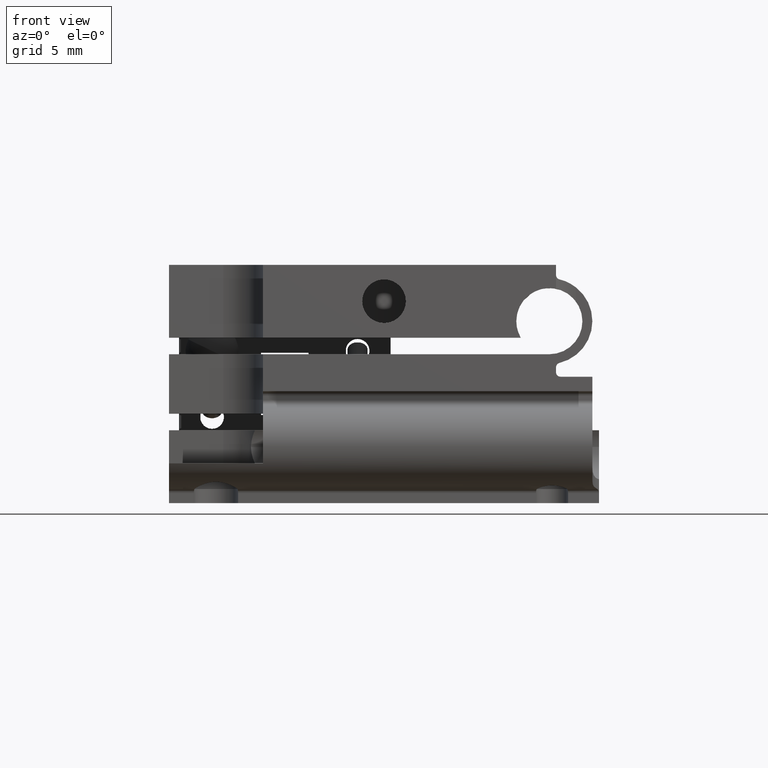
[diagram: clean part render]
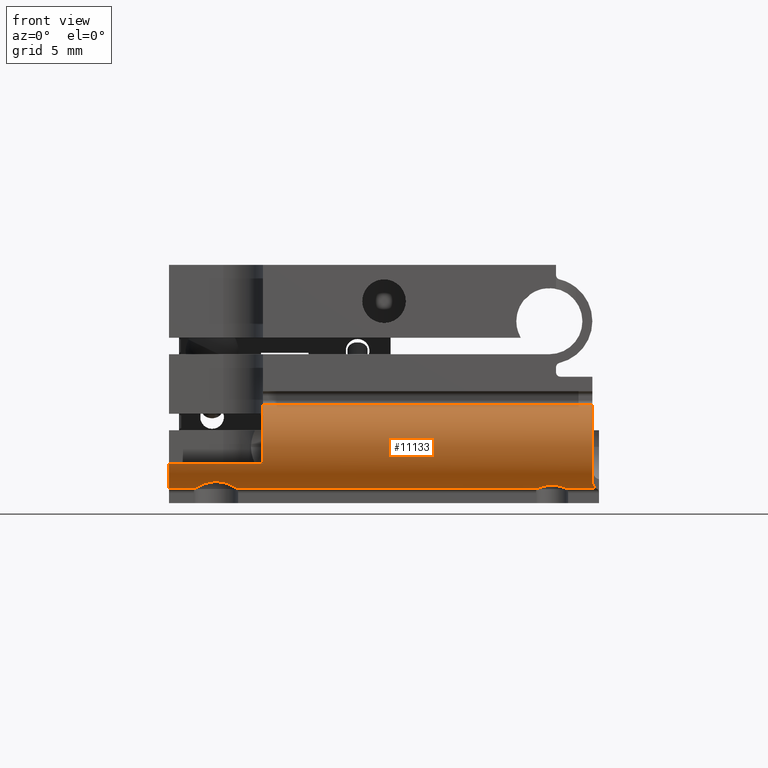
[diagram: same view with one face highlighted and labeled with its STEP entity id]
A machine part, front view. The second image highlights one B-rep face of the part: STEP entity #11133.
In plain terms, the highlighted cylindrical surface (partial cylindrical patch) has radius 3.25 mm, axis along (1, 0, -0).
Its self-contained STEP definition (entity closure, byte-faithful):
#1 = ORIENTED_EDGE ( 'NONE', *, *, #7486, .T. ) ;
#194 = CARTESIAN_POINT ( 'NONE',  ( -11.43174660582899982, -13.88304196556610748, -7.699923722314527375 ) ) ;
#230 = CARTESIAN_POINT ( 'NONE',  ( 13.81382286275632509, -13.26736111111108407, -7.908109707586851833 ) ) ;
#384 = VERTEX_POINT ( 'NONE', #9988 ) ;
#472 = CARTESIAN_POINT ( 'NONE',  ( 11.63840797275807581, -13.36989880288719945, -7.883194981887787556 ) ) ;
#486 = DIRECTION ( 'NONE',  ( 2.135044278125301343E-15, 1.000000000000000000, 0.000000000000000000 ) ) ;
#556 = CARTESIAN_POINT ( 'NONE',  ( -16.25000000000005329, -13.26736111111113381, -7.908109707586851833 ) ) ;
#699 = VECTOR ( 'NONE', #7487, 1000.000000000000000 ) ;
#944 = EDGE_CURVE ( 'NONE', #6892, #7946, #9465, .T. ) ;
#1004 = VERTEX_POINT ( 'NONE', #7584 ) ;
#1054 = VERTEX_POINT ( 'NONE', #3561 ) ;
#1146 = EDGE_LOOP ( 'NONE', ( #4720, #1370, #5791, #4307, #10930, #1717, #4099, #7380, #3939, #1694, #1 ) ) ;
#1172 = DIRECTION ( 'NONE',  ( 1.000000000000000000, 1.186720098882862977E-15, -5.663173514520109537E-32 ) ) ;
#1244 = EDGE_CURVE ( 'NONE', #1054, #1004, #9530, .T. ) ;
#1248 = LINE ( 'NONE', #556, #9155 ) ;
#1261 = DIRECTION ( 'NONE',  ( 2.135044278125301343E-15, 1.000000000000000000, 0.000000000000000000 ) ) ;
#1370 = ORIENTED_EDGE ( 'NONE', *, *, #7758, .F. ) ;
#1694 = ORIENTED_EDGE ( 'NONE', *, *, #944, .T. ) ;
#1709 = VERTEX_POINT ( 'NONE', #7039 ) ;
#1717 = ORIENTED_EDGE ( 'NONE', *, *, #6353, .T. ) ;
#1747 = CIRCLE ( 'NONE', #8862, 3.249999999999999556 ) ;
#1862 = CYLINDRICAL_SURFACE ( 'NONE', #6418, 3.249999999999999556 ) ;
#1875 = EDGE_CURVE ( 'NONE', #9470, #9598, #1248, .T. ) ;
#1962 = CARTESIAN_POINT ( 'NONE',  ( -13.95439444993881573, -13.86019035806821975, -7.705391821954679088 ) ) ;
#2076 = CARTESIAN_POINT ( 'NONE',  ( -16.25000000000005329, -15.50000000000002309, -5.999999999999999112 ) ) ;
#2177 = CARTESIAN_POINT ( 'NONE',  ( 11.94440414927345273, -13.70219956272056550, -7.770168817092402591 ) ) ;
#2296 = CARTESIAN_POINT ( 'NONE',  ( 11.70295099167364761, -13.46235472095854213, -7.855496988838596373 ) ) ;
#2410 = CARTESIAN_POINT ( 'NONE',  ( 16.07500543228287881, -13.26736111111108585, -7.908109707586851833 ) ) ;
#2907 = CARTESIAN_POINT ( 'NONE',  ( -16.25000000000005329, -13.26736111111113381, -7.908109707586851833 ) ) ;
#2936 = DIRECTION ( 'NONE',  ( 2.135044278125301343E-15, 1.000000000000000000, 0.000000000000000000 ) ) ;
#2952 = CARTESIAN_POINT ( 'NONE',  ( -14.30252967822716137, -13.26736111111113559, -7.908109707586851833 ) ) ;
#2998 = CARTESIAN_POINT ( 'NONE',  ( 11.58617713724362552, -13.26736111111108407, -7.908109707586851833 ) ) ;
#3258 = CARTESIAN_POINT ( 'NONE',  ( 12.23308052409985969, -13.88144082189296746, -7.694645164528199466 ) ) ;
#3391 = AXIS2_PLACEMENT_3D ( 'NONE', #5588, #9095, #1261 ) ;
#3475 = CARTESIAN_POINT ( 'NONE',  ( 15.74999999999994138, -12.49999999999997513, -4.749999999999998224 ) ) ;
#3561 = CARTESIAN_POINT ( 'NONE',  ( 16.07500543228287881, -13.26736111111108585, -7.908109707586851833 ) ) ;
#3607 = B_SPLINE_CURVE_WITH_KNOTS ( 'NONE', 3,
 ( #5491, #3725, #7922, #1962, #10728, #10611, #9629, #4529, #8826, #5267, #3614, #10561, #8029, #194, #6378, #8767 ),
 .UNSPECIFIED., .F., .F.,
 ( 4, 2, 2, 2, 2, 2, 2, 4 ),
 ( 0.000000000000000000, 0.0005374765658765263575, 0.001074953131753052715, 0.001612429697629578964, 0.002149906263506105430, 0.002687382829382631896, 0.003224859395259157928, 0.004299812527012208258 ),
 .UNSPECIFIED. ) ;
#3614 = CARTESIAN_POINT ( 'NONE',  ( -12.34404459288451505, -14.37166200256470638, -7.407759635926614905 ) ) ;
#3725 = CARTESIAN_POINT ( 'NONE',  ( -14.24333043838024260, -13.43457126514756617, -7.867480792992081362 ) ) ;
#3746 = EDGE_CURVE ( 'NONE', #9598, #384, #3607, .T. ) ;
#3939 = ORIENTED_EDGE ( 'NONE', *, *, #6903, .T. ) ;
#4051 = CARTESIAN_POINT ( 'NONE',  ( 11.58617713724362552, -13.26736111111108407, -7.908109707586851833 ) ) ;
#4057 = CARTESIAN_POINT ( 'NONE',  ( 15.95870090299691668, -13.47258075952399281, -7.858245202547762709 ) ) ;
#4099 = ORIENTED_EDGE ( 'NONE', *, *, #8395, .T. ) ;
#4269 = CARTESIAN_POINT ( 'NONE',  ( 15.74999999999994138, -13.26736111111108762, -1.591890292413145946 ) ) ;
#4307 = ORIENTED_EDGE ( 'NONE', *, *, #3746, .T. ) ;
#4335 = CARTESIAN_POINT ( 'NONE',  ( -16.25000000000006750, -15.50000000000002309, -5.999999999999999112 ) ) ;
#4434 = VERTEX_POINT ( 'NONE', #4335 ) ;
#4481 = DIRECTION ( 'NONE',  ( 1.000000000000000000, 1.609823385706476984E-15, -8.011868568650903338E-32 ) ) ;
#4529 = CARTESIAN_POINT ( 'NONE',  ( -13.06539000712836263, -14.36945751156277318, -7.409318580404959498 ) ) ;
#4719 = LINE ( 'NONE', #6510, #699 ) ;
#4720 = ORIENTED_EDGE ( 'NONE', *, *, #5728, .T. ) ;
#5012 = CARTESIAN_POINT ( 'NONE',  ( -9.150000000000039435, -13.26736111111113736, -1.591890292413145946 ) ) ;
#5093 = CARTESIAN_POINT ( 'NONE',  ( -16.25000000000005329, -13.26736111111113559, -1.591890292413145946 ) ) ;
#5267 = CARTESIAN_POINT ( 'NONE',  ( -12.52588443883148095, -14.40049907964066200, -7.386399749102944057 ) ) ;
#5326 = VERTEX_POINT ( 'NONE', #230 ) ;
#5331 = CARTESIAN_POINT ( 'NONE',  ( -16.25000000000005329, -12.50000000000002309, -4.749999999999998224 ) ) ;
#5335 = LINE ( 'NONE', #8893, #6158 ) ;
#5491 = CARTESIAN_POINT ( 'NONE',  ( -14.30252967822716137, -13.26736111111113559, -7.908109707586851833 ) ) ;
#5588 = CARTESIAN_POINT ( 'NONE',  ( -16.25000000000005329, -12.50000000000002309, -4.749999999999998224 ) ) ;
#5728 = EDGE_CURVE ( 'NONE', #1709, #4434, #7100, .T. ) ;
#5749 = CIRCLE ( 'NONE', #9945, 3.249999999999997780 ) ;
#5791 = ORIENTED_EDGE ( 'NONE', *, *, #1875, .T. ) ;
#5840 = CARTESIAN_POINT ( 'NONE',  ( 13.15480004999276709, -13.87013198110548906, -7.697285361000870907 ) ) ;
#6035 = DIRECTION ( 'NONE',  ( -1.000000000000000000, -1.609823385706476984E-15, 8.011868568650903338E-32 ) ) ;
#6158 = VECTOR ( 'NONE', #6280, 1000.000000000000000 ) ;
#6280 = DIRECTION ( 'NONE',  ( 1.000000000000000000, 1.609823385706476984E-15, -8.011868568650903338E-32 ) ) ;
#6353 = EDGE_CURVE ( 'NONE', #9941, #5326, #9677, .T. ) ;
#6378 = CARTESIAN_POINT ( 'NONE',  ( -11.21597576401134155, -13.60208353832618400, -7.826778469142373851 ) ) ;
#6418 = AXIS2_PLACEMENT_3D ( 'NONE', #5331, #4481, #2936 ) ;
#6510 = CARTESIAN_POINT ( 'NONE',  ( -16.25000000000005329, -13.26736111111113381, -7.908109707586851833 ) ) ;
#6545 = CARTESIAN_POINT ( 'NONE',  ( -9.150000000000037659, -12.50000000000002487, -4.749999999999998224 ) ) ;
#6709 = CARTESIAN_POINT ( 'NONE',  ( 15.74999999999995914, -14.31023702222723060, -7.459889454570980405 ) ) ;
#6756 = CARTESIAN_POINT ( 'NONE',  ( 13.25940661516695762, -13.82373546944367426, -7.718927115473563028 ) ) ;
#6760 = CARTESIAN_POINT ( 'NONE',  ( 15.77141869312920264, -14.10716026191368755, -7.584533274308135731 ) ) ;
#6892 = VERTEX_POINT ( 'NONE', #4269 ) ;
#6903 = EDGE_CURVE ( 'NONE', #1004, #6892, #5749, .T. ) ;
#6971 = DIRECTION ( 'NONE',  ( -1.000000000000000000, -1.501403168457926540E-15, -1.000802005371235621E-16 ) ) ;
#7039 = CARTESIAN_POINT ( 'NONE',  ( -9.150000000000039435, -15.50000000000002487, -5.999999999999999112 ) ) ;
#7100 = LINE ( 'NONE', #2076, #8278 ) ;
#7380 = ORIENTED_EDGE ( 'NONE', *, *, #1244, .T. ) ;
#7453 = CARTESIAN_POINT ( 'NONE',  ( 13.55278798654527073, -13.64240188641456086, -7.795428240846659307 ) ) ;
#7486 = EDGE_CURVE ( 'NONE', #7946, #1709, #1747, .T. ) ;
#7487 = DIRECTION ( 'NONE',  ( 1.000000000000000000, 1.609823385706476984E-15, -8.011868568650903338E-32 ) ) ;
#7505 = CARTESIAN_POINT ( 'NONE',  ( 11.85597779116327644, -13.62893377404565776, -7.798892699072207613 ) ) ;
#7564 = CARTESIAN_POINT ( 'NONE',  ( 12.81514561519215256, -13.95015371804375093, -7.658531282961968500 ) ) ;
#7584 = CARTESIAN_POINT ( 'NONE',  ( 15.74999999999995914, -14.49999999999996447, -7.311737691489905266 ) ) ;
#7737 = CARTESIAN_POINT ( 'NONE',  ( 15.74999999999995914, -14.49999999999996447, -7.311737691489905266 ) ) ;
#7758 = EDGE_CURVE ( 'NONE', #9470, #4434, #10534, .T. ) ;
#7872 = FACE_OUTER_BOUND ( 'NONE', #1146, .T. ) ;
#7922 = CARTESIAN_POINT ( 'NONE',  ( -14.16125141307890800, -13.58560228701525396, -7.816908264993519317 ) ) ;
#7946 = VERTEX_POINT ( 'NONE', #5012 ) ;
#8029 = CARTESIAN_POINT ( 'NONE',  ( -11.85099320073068085, -14.18280180598206996, -7.532762448230402974 ) ) ;
#8278 = VECTOR ( 'NONE', #9652, 1000.000000000000000 ) ;
#8395 = EDGE_CURVE ( 'NONE', #5326, #1054, #5335, .T. ) ;
#8767 = CARTESIAN_POINT ( 'NONE',  ( -11.09747032177289938, -13.26736111111113559, -7.908109707586851833 ) ) ;
#8826 = CARTESIAN_POINT ( 'NONE',  ( -12.88372849755429606, -14.39948733084016474, -7.387128792600534233 ) ) ;
#8862 = AXIS2_PLACEMENT_3D ( 'NONE', #6545, #1172, #486 ) ;
#8893 = CARTESIAN_POINT ( 'NONE',  ( -16.25000000000005329, -13.26736111111113381, -7.908109707586851833 ) ) ;
#9095 = DIRECTION ( 'NONE',  ( -1.000000000000000000, -1.609823385706476984E-15, 8.011868568650903338E-32 ) ) ;
#9155 = VECTOR ( 'NONE', #10976, 1000.000000000000000 ) ;
#9465 = LINE ( 'NONE', #5093, #10234 ) ;
#9470 = VERTEX_POINT ( 'NONE', #2907 ) ;
#9519 = EDGE_CURVE ( 'NONE', #384, #9941, #4719, .T. ) ;
#9530 = B_SPLINE_CURVE_WITH_KNOTS ( 'NONE', 3,
 ( #2410, #4057, #11068, #6760, #6709, #7737 ),
 .UNSPECIFIED., .F., .F.,
 ( 4, 2, 4 ),
 ( 0.000000000000000000, 0.0007118922461806750143, 0.001423784492361350029 ),
 .UNSPECIFIED. ) ;
#9598 = VERTEX_POINT ( 'NONE', #2952 ) ;
#9629 = CARTESIAN_POINT ( 'NONE',  ( -13.39769609076519075, -14.26007000008128500, -7.482947181055534358 ) ) ;
#9652 = DIRECTION ( 'NONE',  ( -1.000000000000000000, -1.609823385706476984E-15, 8.011868568650903338E-32 ) ) ;
#9677 = B_SPLINE_CURVE_WITH_KNOTS ( 'NONE', 3,
 ( #4051, #472, #2296, #7505, #2177, #3258, #11001, #7564, #11063, #5840, #6756, #7453, #10241, #10942 ),
 .UNSPECIFIED., .F., .F.,
 ( 4, 2, 2, 2, 2, 2, 4 ),
 ( 0.000000000000000000, 0.0003481276473876195282, 0.0006962552947752384059, 0.001392510589550476161, 0.001740638236938097695, 0.002088765884325718795, 0.002785021179100956659 ),
 .UNSPECIFIED. ) ;
#9941 = VERTEX_POINT ( 'NONE', #2998 ) ;
#9945 = AXIS2_PLACEMENT_3D ( 'NONE', #3475, #6971, #10463 ) ;
#9988 = CARTESIAN_POINT ( 'NONE',  ( -11.09747032177289938, -13.26736111111113559, -7.908109707586851833 ) ) ;
#10234 = VECTOR ( 'NONE', #6035, 1000.000000000000000 ) ;
#10241 = CARTESIAN_POINT ( 'NONE',  ( 13.70933894620527838, -13.47248016626974376, -7.858269644811803900 ) ) ;
#10463 = DIRECTION ( 'NONE',  ( -2.135044278125302526E-15, -1.000000000000000000, 0.000000000000000000 ) ) ;
#10534 = CIRCLE ( 'NONE', #3391, 3.249999999999999556 ) ;
#10561 = CARTESIAN_POINT ( 'NONE',  ( -12.00819258746625806, -14.26286935046942794, -7.481134670312102664 ) ) ;
#10611 = CARTESIAN_POINT ( 'NONE',  ( -13.55375399855931384, -14.18001286792504168, -7.534449172905677727 ) ) ;
#10728 = CARTESIAN_POINT ( 'NONE',  ( -13.83181689066818798, -13.97997050953446241, -7.645736128136871201 ) ) ;
#10930 = ORIENTED_EDGE ( 'NONE', *, *, #9519, .T. ) ;
#10942 = CARTESIAN_POINT ( 'NONE',  ( 13.81382286275632509, -13.26736111111108407, -7.908109707586851833 ) ) ;
#10976 = DIRECTION ( 'NONE',  ( 1.000000000000000000, 1.609823385706476984E-15, -8.011868568650903338E-32 ) ) ;
#11001 = CARTESIAN_POINT ( 'NONE',  ( 12.46473832757092204, -13.94968926987173141, -7.658762819570728908 ) ) ;
#11063 = CARTESIAN_POINT ( 'NONE',  ( 12.93090344468503616, -13.93399170901261286, -7.666748261900771411 ) ) ;
#11068 = CARTESIAN_POINT ( 'NONE',  ( 15.87706603401722205, -13.68337723049479848, -7.785977819579872339 ) ) ;
#11133 = ADVANCED_FACE ( 'NONE', ( #7872 ), #1862, .T. ) ;